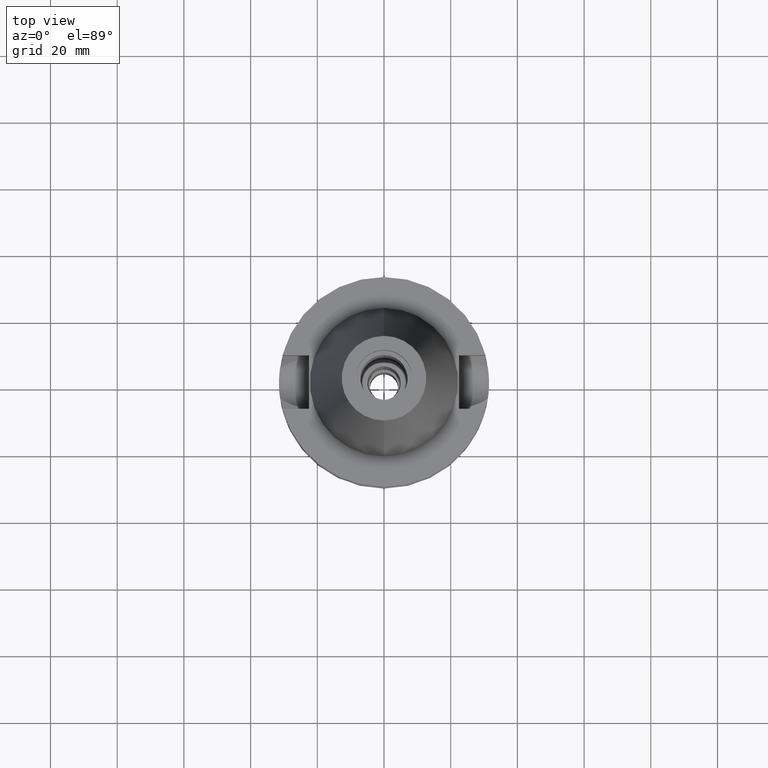
[diagram: clean part render]
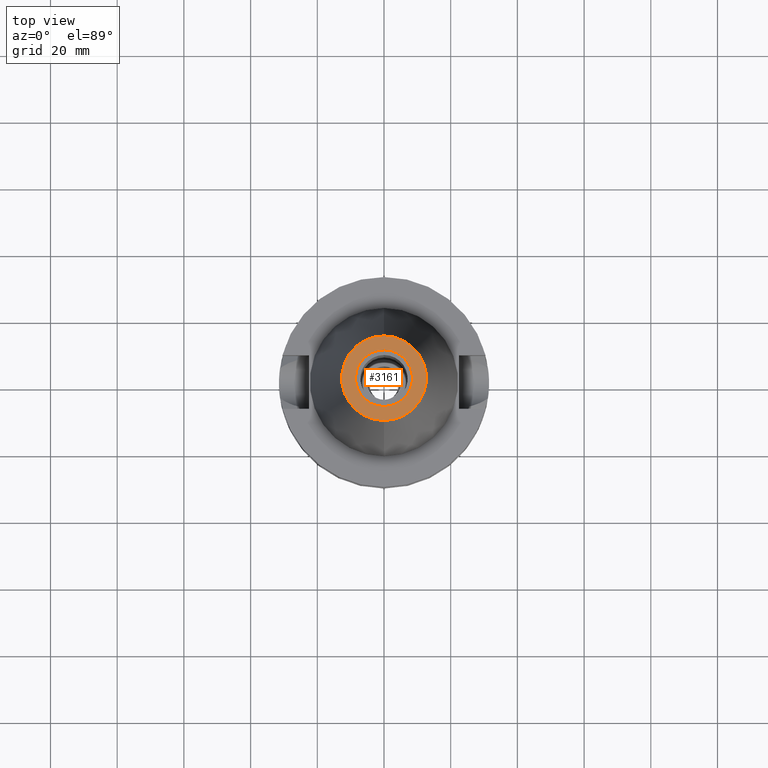
[diagram: same view with one face highlighted and labeled with its STEP entity id]
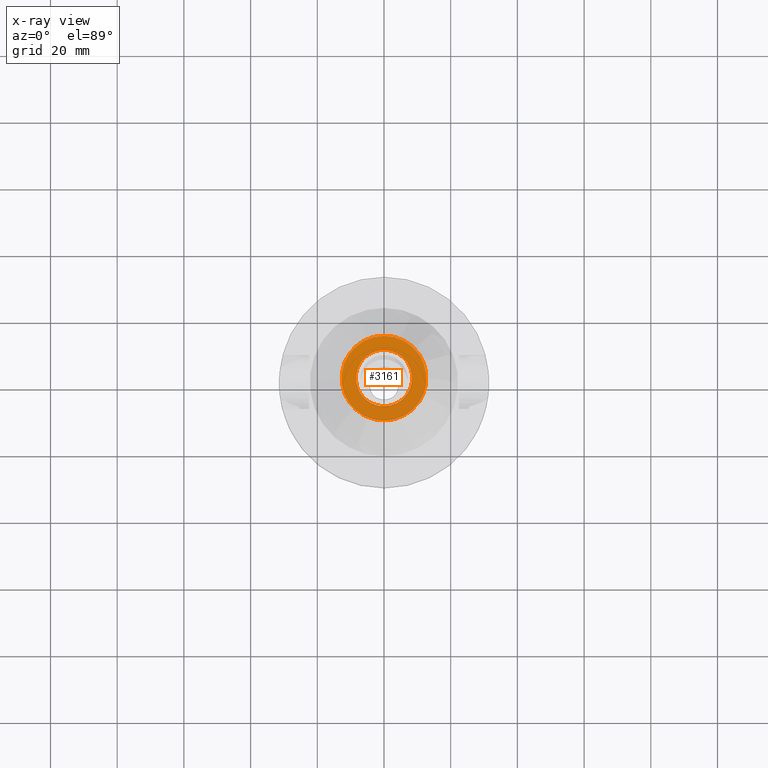
[diagram: x-ray of the same camera — body ghosted, the highlighted face saturated]
A machine part, top view. The second image highlights one B-rep face of the part: STEP entity #3161.
The next image is the same camera in x-ray: the body ghosted, the highlighted face saturated — about 0% of this face is hidden behind the body in this view.
In plain terms, the highlighted planar face has unit normal (0, 0, -1).
Its self-contained STEP definition (entity closure, byte-faithful):
#11 = VERTEX_POINT ( 'NONE', #1770 ) ;
#61 = VERTEX_POINT ( 'NONE', #971 ) ;
#78 = DIRECTION ( 'NONE',  ( 0.0000000000000000000, 0.0000000000000000000, -1.000000000000000000 ) ) ;
#119 = CARTESIAN_POINT ( 'NONE',  ( 0.0000000000000000000, -8.500000000000000000, 65.40000000000000568 ) ) ;
#214 = DIRECTION ( 'NONE',  ( 0.0000000000000000000, 0.0000000000000000000, -1.000000000000000000 ) ) ;
#302 = FACE_BOUND ( 'NONE', #1850, .T. ) ;
#354 = AXIS2_PLACEMENT_3D ( 'NONE', #2127, #78, #637 ) ;
#637 = DIRECTION ( 'NONE',  ( 0.0000000000000000000, -1.000000000000000000, 0.0000000000000000000 ) ) ;
#971 = CARTESIAN_POINT ( 'NONE',  ( 0.0000000000000000000, 8.500000000000000000, 65.40000000000000568 ) ) ;
#1096 = EDGE_CURVE ( 'NONE', #2787, #11, #1125, .T. ) ;
#1125 = CIRCLE ( 'NONE', #354, 12.68766899429999917 ) ;
#1299 = CARTESIAN_POINT ( 'NONE',  ( 0.0000000000000000000, 1.625106302469000024E-14, 65.40000000000000568 ) ) ;
#1346 = DIRECTION ( 'NONE',  ( 0.0000000000000000000, -1.000000000000000000, 0.0000000000000000000 ) ) ;
#1372 = ORIENTED_EDGE ( 'NONE', *, *, #3034, .F. ) ;
#1383 = PLANE ( 'NONE',  #3275 ) ;
#1395 = AXIS2_PLACEMENT_3D ( 'NONE', #1299, #2205, #1890 ) ;
#1402 = AXIS2_PLACEMENT_3D ( 'NONE', #1621, #1961, #1941 ) ;
#1554 = ORIENTED_EDGE ( 'NONE', *, *, #1837, .F. ) ;
#1569 = AXIS2_PLACEMENT_3D ( 'NONE', #2256, #3605, #1667 ) ;
#1621 = CARTESIAN_POINT ( 'NONE',  ( 0.0000000000000000000, 2.144601474666999952E-14, 65.40000000000000568 ) ) ;
#1667 = DIRECTION ( 'NONE',  ( 0.0000000000000000000, -1.000000000000000000, 0.0000000000000000000 ) ) ;
#1678 = ORIENTED_EDGE ( 'NONE', *, *, #1096, .F. ) ;
#1701 = CIRCLE ( 'NONE', #1569, 8.500000000000000000 ) ;
#1770 = CARTESIAN_POINT ( 'NONE',  ( 0.0000000000000000000, 12.68766899429999917, 65.40000000000000568 ) ) ;
#1837 = EDGE_CURVE ( 'NONE', #11, #2787, #2870, .T. ) ;
#1850 = EDGE_LOOP ( 'NONE', ( #1372, #3454 ) ) ;
#1890 = DIRECTION ( 'NONE',  ( 0.0000000000000000000, 1.000000000000000000, 0.0000000000000000000 ) ) ;
#1941 = DIRECTION ( 'NONE',  ( 0.0000000000000000000, 1.000000000000000000, 0.0000000000000000000 ) ) ;
#1961 = DIRECTION ( 'NONE',  ( 0.0000000000000000000, 0.0000000000000000000, 1.000000000000000000 ) ) ;
#1977 = FACE_OUTER_BOUND ( 'NONE', #2951, .T. ) ;
#2127 = CARTESIAN_POINT ( 'NONE',  ( 0.0000000000000000000, 1.625106302469000024E-14, 65.40000000000000568 ) ) ;
#2205 = DIRECTION ( 'NONE',  ( 0.0000000000000000000, 0.0000000000000000000, -1.000000000000000000 ) ) ;
#2256 = CARTESIAN_POINT ( 'NONE',  ( 0.0000000000000000000, 2.144601474666999952E-14, 65.40000000000000568 ) ) ;
#2458 = EDGE_CURVE ( 'NONE', #3270, #61, #1701, .T. ) ;
#2787 = VERTEX_POINT ( 'NONE', #2942 ) ;
#2870 = CIRCLE ( 'NONE', #1395, 12.68766899429999917 ) ;
#2942 = CARTESIAN_POINT ( 'NONE',  ( 0.0000000000000000000, -12.68766899429999917, 65.40000000000000568 ) ) ;
#2951 = EDGE_LOOP ( 'NONE', ( #1554, #1678 ) ) ;
#3034 = EDGE_CURVE ( 'NONE', #61, #3270, #3266, .T. ) ;
#3092 = CARTESIAN_POINT ( 'NONE',  ( 0.0000000000000000000, 2.025565805790000122E-14, 65.40000000000000568 ) ) ;
#3161 = ADVANCED_FACE ( 'NONE', ( #1977, #302 ), #1383, .F. ) ;
#3266 = CIRCLE ( 'NONE', #1402, 8.500000000000000000 ) ;
#3270 = VERTEX_POINT ( 'NONE', #119 ) ;
#3275 = AXIS2_PLACEMENT_3D ( 'NONE', #3092, #214, #1346 ) ;
#3454 = ORIENTED_EDGE ( 'NONE', *, *, #2458, .F. ) ;
#3605 = DIRECTION ( 'NONE',  ( 0.0000000000000000000, 0.0000000000000000000, 1.000000000000000000 ) ) ;